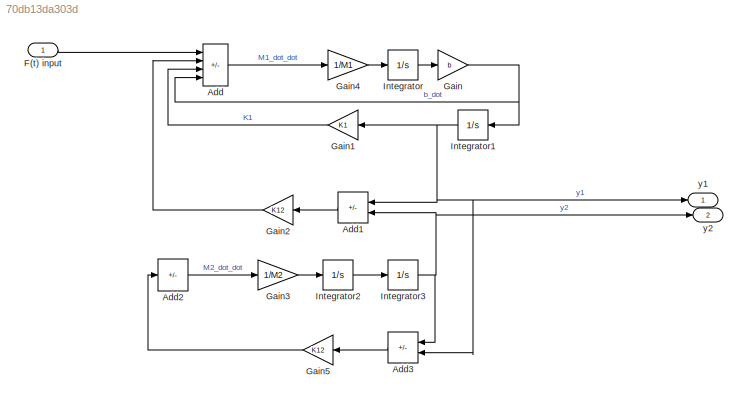
MODEL slx_70db13da303d
KIND model
CONFIG AbsTol = auto
CONFIG EnableMultiTasking = off
CONFIG FixedStep = auto
CONFIG MaxStep = auto
CONFIG MinStep = auto
CONFIG RelTol = 1e-3
CONFIG SampleTimeConstraint = Unconstrained
CONFIG SolverName = VariableStepAuto
CONFIG StartTime = 0.0
CONFIG StopTime = 10.0
BLOCK [Sum] Add
  IconShape = rectangular
  Inputs = +---
  Ports = [4, 1]
BLOCK [Sum] Add1
  IconShape = rectangular
  Inputs = +-
  NameLocation = top
  Ports = [2, 1]
BLOCK [Sum] Add2
  IconShape = rectangular
  Inputs = -
  Ports = [1, 1]
BLOCK [Sum] Add3
  IconShape = rectangular
  Inputs = +-
  NameLocation = top
  Ports = [2, 1]
BLOCK [Inport] F(t) input
BLOCK [Gain] Gain
  Gain = b
BLOCK [Gain] Gain1
  Gain = K1
  NameLocation = top
BLOCK [Gain] Gain2
  Gain = K12
  NameLocation = top
BLOCK [Gain] Gain3
  Gain = 1/M2
  NameLocation = top
BLOCK [Gain] Gain4
  Gain = 1/M1
  NameLocation = top
BLOCK [Gain] Gain5
  Gain = K12
  NameLocation = top
BLOCK [Integrator] Integrator
  Ports = [1, 1]
BLOCK [Integrator] Integrator1
  NameLocation = top
  Ports = [1, 1]
BLOCK [Integrator] Integrator2
  Ports = [1, 1]
BLOCK [Integrator] Integrator3
  Ports = [1, 1]
BLOCK [Outport] y1
BLOCK [Outport] y2
  Port = 2
LINE Add1:1 -> Gain2:1
LINE Add2:1 -> Gain3:1
LINE Add3:1 -> Gain5:1
LINE Add:1 -> Gain4:1
LINE F(t) input:1 -> Add:1
LINE Gain1:1 -> Add:3
LINE Gain2:1 -> Add:2
LINE Gain3:1 -> Integrator2:1
LINE Gain4:1 -> Integrator:1
LINE Gain5:1 -> Add2:1
NET Gain:1 -> Add:4, Integrator1:1
NET Integrator1:1 -> Add1:1, Add3:2, Gain1:1, y1:1
LINE Integrator2:1 -> Integrator3:1
NET Integrator3:1 -> Add1:2, Add3:1, y2:1
LINE Integrator:1 -> Gain:1
note: NET lines group one-source signal fan-out (src -> all destinations, sorted); 1:1 wires keep LINE
